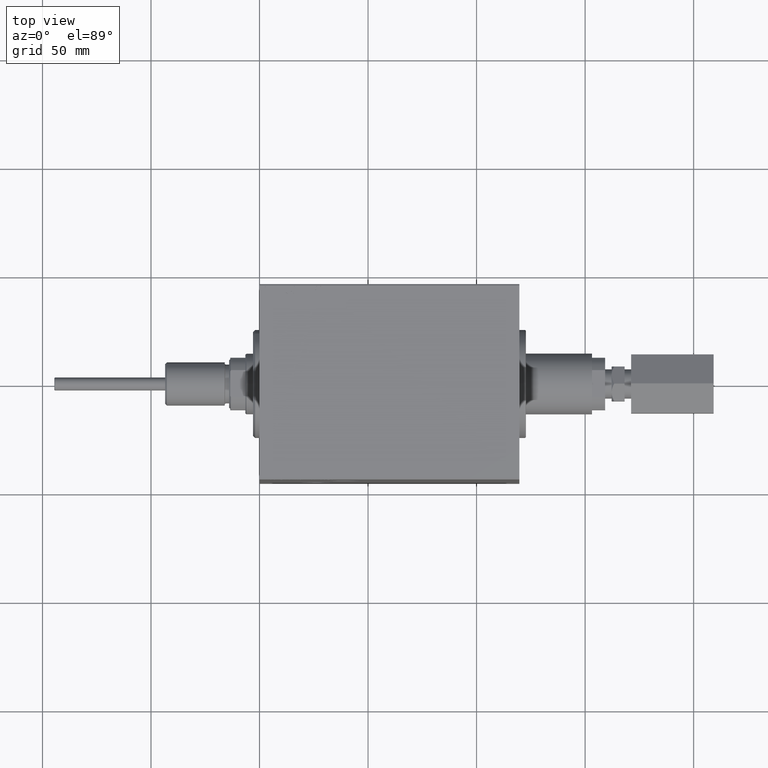
[diagram: clean part render]
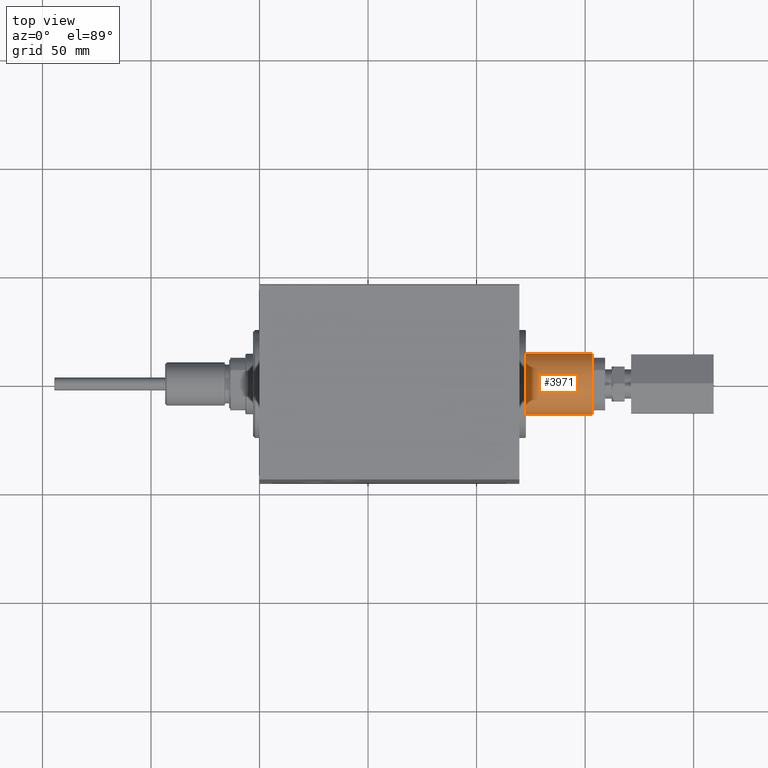
[diagram: same view with one face highlighted and labeled with its STEP entity id]
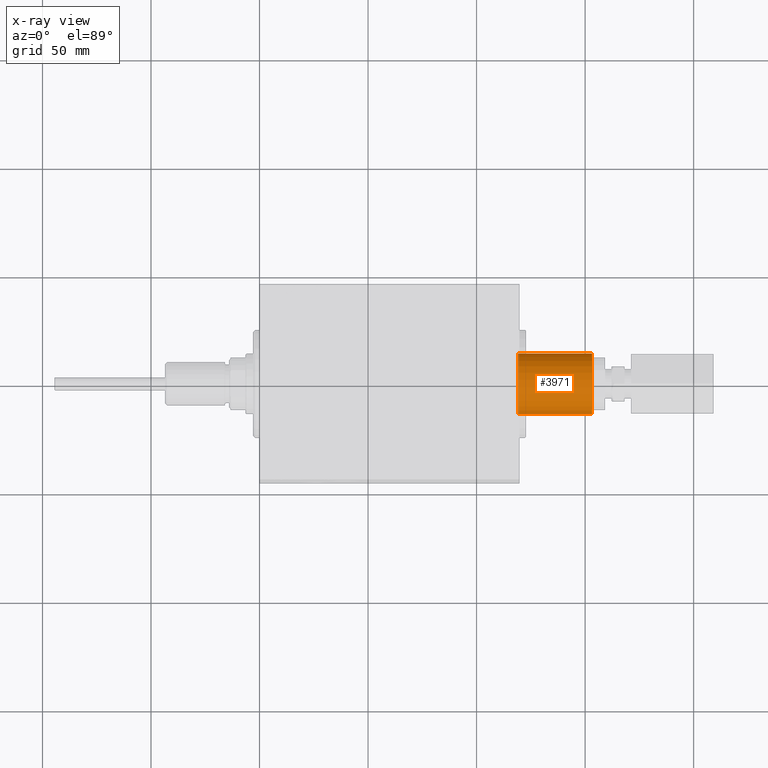
[diagram: x-ray of the same camera — body ghosted, the highlighted face saturated]
A machine part, top view. The second image highlights one B-rep face of the part: STEP entity #3971.
The next image is the same camera in x-ray: the body ghosted, the highlighted face saturated — about 2% of this face is hidden behind the body in this view.
In plain terms, the highlighted cylindrical surface (edge-blend (fillet) strip) has radius 14 mm, axis along (-1, 0, 0).
Its self-contained STEP definition (entity closure, byte-faithful):
#1108 = VERTEX_POINT ( 'NONE', #12651 ) ;
#3792 = DIRECTION ( 'NONE',  ( -1.000000000000000000, -0.000000000000000000, -0.000000000000000000 ) ) ;
#3966 = CARTESIAN_POINT ( 'NONE',  ( 0.3000000000000085931, 0.000000000000000000, 13.99999999999999822 ) ) ;
#3971 = ADVANCED_FACE ( 'NONE', ( #21368 ), #17814, .T. ) ;
#4212 = CARTESIAN_POINT ( 'NONE',  ( 34.50000000000000000, 0.000000000000000000, 0.000000000000000000 ) ) ;
#4880 = ORIENTED_EDGE ( 'NONE', *, *, #35883, .F. ) ;
#6443 = CARTESIAN_POINT ( 'NONE',  ( 34.50000000000000000, 0.000000000000000000, 13.99999999999999822 ) ) ;
#9679 = EDGE_CURVE ( 'NONE', #23526, #1108, #13697, .T. ) ;
#11048 = DIRECTION ( 'NONE',  ( 1.000000000000000000, -0.000000000000000000, -0.000000000000000000 ) ) ;
#11279 = DIRECTION ( 'NONE',  ( -1.000000000000000000, -0.000000000000000000, -0.000000000000000000 ) ) ;
#12651 = CARTESIAN_POINT ( 'NONE',  ( 34.50000000000000000, 1.714505518806294441E-15, -13.99999999999999822 ) ) ;
#12830 = EDGE_LOOP ( 'NONE', ( #4880, #32138, #27628, #23049 ) ) ;
#13697 = CIRCLE ( 'NONE', #40324, 13.99999999999999822 ) ;
#13752 = DIRECTION ( 'NONE',  ( -1.000000000000000000, -0.000000000000000000, -0.000000000000000000 ) ) ;
#14372 = DIRECTION ( 'NONE',  ( 0.000000000000000000, 0.000000000000000000, -1.000000000000000000 ) ) ;
#14846 = LINE ( 'NONE', #33185, #44010 ) ;
#17814 = CYLINDRICAL_SURFACE ( 'NONE', #46985, 13.99999999999999822 ) ;
#17951 = CARTESIAN_POINT ( 'NONE',  ( 0.3000000000000085931, 0.000000000000000000, 0.000000000000000000 ) ) ;
#19437 = DIRECTION ( 'NONE',  ( 0.000000000000000000, 0.000000000000000000, -1.000000000000000000 ) ) ;
#20040 = VERTEX_POINT ( 'NONE', #3966 ) ;
#20866 = CARTESIAN_POINT ( 'NONE',  ( 0.3000000000000085931, 1.714505518806294441E-15, -13.99999999999999822 ) ) ;
#21368 = FACE_OUTER_BOUND ( 'NONE', #12830, .T. ) ;
#22319 = CIRCLE ( 'NONE', #28402, 13.99999999999999822 ) ;
#23049 = ORIENTED_EDGE ( 'NONE', *, *, #43540, .T. ) ;
#23526 = VERTEX_POINT ( 'NONE', #6443 ) ;
#25173 = CARTESIAN_POINT ( 'NONE',  ( 34.50000000000000000, 0.000000000000000000, 0.000000000000000000 ) ) ;
#25463 = LINE ( 'NONE', #46428, #31173 ) ;
#26812 = DIRECTION ( 'NONE',  ( 1.000000000000000000, 0.000000000000000000, 0.000000000000000000 ) ) ;
#27561 = EDGE_CURVE ( 'NONE', #23526, #20040, #14846, .T. ) ;
#27628 = ORIENTED_EDGE ( 'NONE', *, *, #27561, .T. ) ;
#28281 = DIRECTION ( 'NONE',  ( 0.000000000000000000, 0.000000000000000000, 1.000000000000000000 ) ) ;
#28402 = AXIS2_PLACEMENT_3D ( 'NONE', #17951, #11048, #14372 ) ;
#29216 = VERTEX_POINT ( 'NONE', #20866 ) ;
#31173 = VECTOR ( 'NONE', #3792, 1000.000000000000000 ) ;
#32138 = ORIENTED_EDGE ( 'NONE', *, *, #9679, .F. ) ;
#33185 = CARTESIAN_POINT ( 'NONE',  ( 34.50000000000000000, 0.000000000000000000, 13.99999999999999822 ) ) ;
#35883 = EDGE_CURVE ( 'NONE', #1108, #29216, #25463, .T. ) ;
#40324 = AXIS2_PLACEMENT_3D ( 'NONE', #4212, #26812, #19437 ) ;
#43540 = EDGE_CURVE ( 'NONE', #20040, #29216, #22319, .T. ) ;
#44010 = VECTOR ( 'NONE', #11279, 1000.000000000000000 ) ;
#46428 = CARTESIAN_POINT ( 'NONE',  ( 34.50000000000000000, 1.714505518806294441E-15, -13.99999999999999822 ) ) ;
#46985 = AXIS2_PLACEMENT_3D ( 'NONE', #25173, #13752, #28281 ) ;